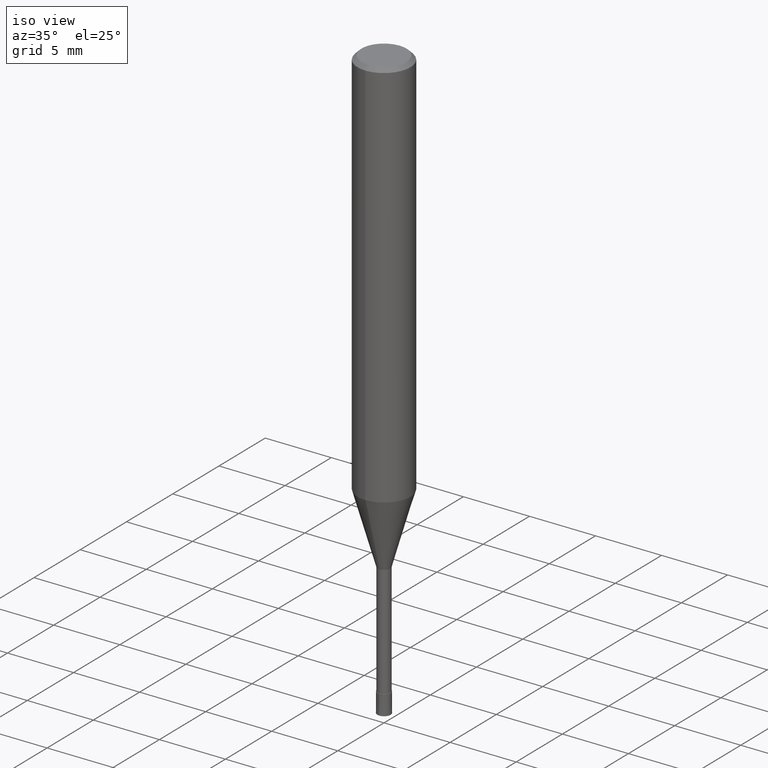
[diagram: clean part render]
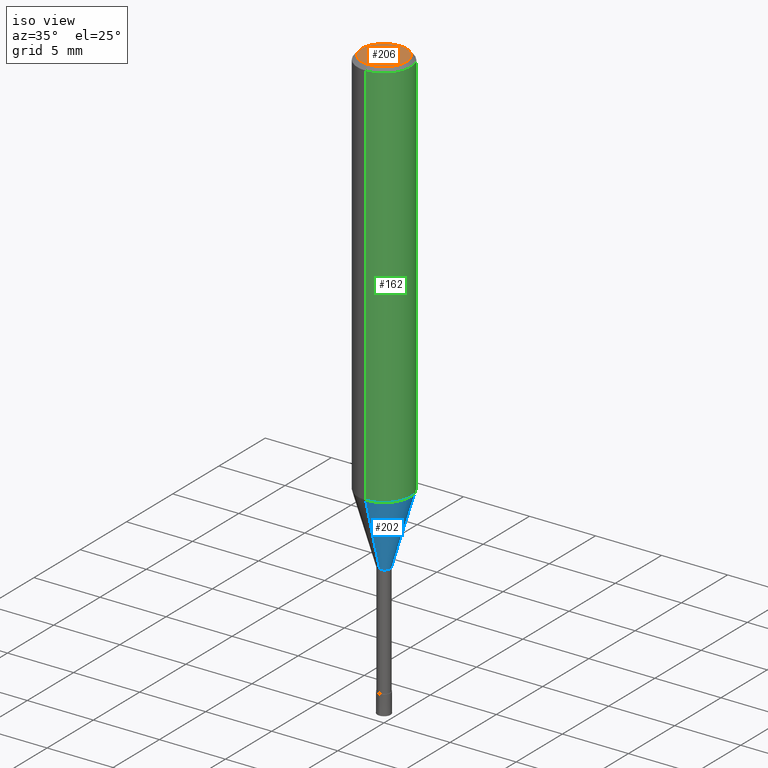
[diagram: same view with three faces highlighted in distinct colors, each labeled with its STEP entity id]
A machine part, iso view with three faces highlighted in distinct colors.
Their STEP definitions:

[orange] entity #206 — the highlighted planar face has unit normal (-0, 0, 1).
#98=EDGE_CURVE('',#100,#198,#235,.T.);
#100=VERTEX_POINT('',#237);
#136=EDGE_CURVE('',#198,#100,#280,.T.);
#198=VERTEX_POINT('',#348);
#206=ADVANCED_FACE('',(#358),#359,.T.);
#235=CIRCLE('',#381,1.7);
#237=CARTESIAN_POINT('',(2.08183080149804E-016,-1.7,0.0));
#280=CIRCLE('',#435,1.7);
#348=CARTESIAN_POINT('',(0.0,1.7,0.0));
#358=FACE_OUTER_BOUND('',#536,.T.);
#359=PLANE('',#537);
#381=AXIS2_PLACEMENT_3D('',#542,#543,#544);
#435=AXIS2_PLACEMENT_3D('',#605,#606,#607);
#536=EDGE_LOOP('',(#706,#707));
#537=AXIS2_PLACEMENT_3D('',#708,#709,#710);
#542=CARTESIAN_POINT('',(0.0,0.0,0.0));
#543=DIRECTION('',(0.0,0.0,-1.0));
#544=DIRECTION('',(0.0,1.0,0.0));
#605=CARTESIAN_POINT('',(0.0,0.0,0.0));
#606=DIRECTION('',(0.0,0.0,-1.0));
#607=DIRECTION('',(0.0,1.0,0.0));
#706=ORIENTED_EDGE('',*,*,#136,.F.);
#707=ORIENTED_EDGE('',*,*,#98,.F.);
#708=CARTESIAN_POINT('',(0.0,0.85,0.0));
#709=DIRECTION('',(-0.0,0.0,1.0));
#710=DIRECTION('',(0.0,-1.0,0.0));

[blue] entity #202 — the highlighted conical surface has half-angle 16.001 deg.
#94=VERTEX_POINT('',#231);
#96=VERTEX_POINT('',#233);
#108=VERTEX_POINT('',#245);
#114=VERTEX_POINT('',#254);
#152=EDGE_CURVE('',#96,#114,#297,.T.);
#156=EDGE_CURVE('',#108,#94,#301,.T.);
#164=EDGE_CURVE('',#94,#114,#310,.T.);
#174=EDGE_CURVE('',#96,#108,#322,.T.);
#202=ADVANCED_FACE('',(#352),#353,.T.);
#231=CARTESIAN_POINT('',(5.81626787747938E-017,-0.47495,-35.0));
#233=CARTESIAN_POINT('',(0.0,1.99995,-29.682));
#245=CARTESIAN_POINT('',(0.0,0.47495,-35.0));
#254=CARTESIAN_POINT('',(2.44915147732706E-016,-1.99995,-29.682));
#297=CIRCLE('',#456,1.99995);
#301=CIRCLE('',#462,0.47495);
#310=LINE('',#472,#473);
#322=LINE('',#488,#489);
#352=FACE_OUTER_BOUND('',#530,.T.);
#353=CONICAL_SURFACE('',#531,1.23745,0.279267977304115);
#456=AXIS2_PLACEMENT_3D('',#619,#620,#621);
#462=AXIS2_PLACEMENT_3D('',#625,#626,#627);
#472=CARTESIAN_POINT('',(1.5153891325375E-016,-1.23745,-32.341));
#473=VECTOR('',#636,1.0);
#488=CARTESIAN_POINT('',(-1.5153891325375E-016,1.23745,-32.341));
#489=VECTOR('',#659,1.0);
#530=EDGE_LOOP('',(#692,#693,#694,#695));
#531=AXIS2_PLACEMENT_3D('',#696,#697,#698);
#619=CARTESIAN_POINT('',(0.0,0.0,-29.682));
#620=DIRECTION('',(0.0,0.0,-1.0));
#621=DIRECTION('',(0.0,1.0,0.0));
#625=CARTESIAN_POINT('',(0.0,0.0,-35.0));
#626=DIRECTION('',(0.0,0.0,-1.0));
#627=DIRECTION('',(0.0,1.0,0.0));
#636=DIRECTION('',(3.37565264353533E-017,-0.275652060190515,0.961257479405349));
#659=DIRECTION('',(3.37565264353533E-017,-0.275652060190515,-0.961257479405349));
#692=ORIENTED_EDGE('',*,*,#174,.F.);
#693=ORIENTED_EDGE('',*,*,#152,.T.);
#694=ORIENTED_EDGE('',*,*,#164,.F.);
#695=ORIENTED_EDGE('',*,*,#156,.F.);
#696=CARTESIAN_POINT('',(0.0,0.0,-32.341));
#697=DIRECTION('',(-0.0,-0.0,1.0));
#698=DIRECTION('',(0.0,1.0,0.0));

[green] entity #162 — the highlighted cylindrical surface (edge-blend (fillet) strip) has radius 2 mm, axis along (-0, -0, 1).
#106=VERTEX_POINT('',#243);
#116=VERTEX_POINT('',#256);
#142=VERTEX_POINT('',#286);
#148=EDGE_CURVE('',#106,#194,#293,.T.);
#162=ADVANCED_FACE('',(#307),#308,.T.);
#178=EDGE_CURVE('',#142,#116,#326,.T.);
#188=EDGE_CURVE('',#106,#116,#337,.T.);
#194=VERTEX_POINT('',#344);
#196=EDGE_CURVE('',#194,#142,#346,.T.);
#243=CARTESIAN_POINT('',(0.0,2.0,-0.300000000000001));
#256=CARTESIAN_POINT('',(2.44921270764475E-016,-2.0,-0.300000000000001));
#286=CARTESIAN_POINT('',(2.44921270764475E-016,-2.0,-29.682));
#293=LINE('',#450,#451);
#307=FACE_OUTER_BOUND('',#468,.T.);
#308=CYLINDRICAL_SURFACE('',#469,2.0);
#326=LINE('',#496,#497);
#337=CIRCLE('',#514,2.0);
#344=CARTESIAN_POINT('',(0.0,2.0,-29.682));
#346=CIRCLE('',#525,2.0);
#450=CARTESIAN_POINT('',(-2.44921270764475E-016,2.0,-14.991));
#451=VECTOR('',#618,1.0);
#468=EDGE_LOOP('',(#629,#630,#631,#632));
#469=AXIS2_PLACEMENT_3D('',#633,#634,#635);
#496=CARTESIAN_POINT('',(2.44921270764475E-016,-2.0,-14.991));
#497=VECTOR('',#661,1.0);
#514=AXIS2_PLACEMENT_3D('',#673,#674,#675);
#525=AXIS2_PLACEMENT_3D('',#687,#688,#689);
#618=DIRECTION('',(0.0,0.0,-1.0));
#629=ORIENTED_EDGE('',*,*,#148,.F.);
#630=ORIENTED_EDGE('',*,*,#188,.T.);
#631=ORIENTED_EDGE('',*,*,#178,.F.);
#632=ORIENTED_EDGE('',*,*,#196,.F.);
#633=CARTESIAN_POINT('',(0.0,0.0,-14.991));
#634=DIRECTION('',(-0.0,-0.0,1.0));
#635=DIRECTION('',(0.0,1.0,0.0));
#661=DIRECTION('',(-0.0,-0.0,1.0));
#673=CARTESIAN_POINT('',(0.0,0.0,-0.300000000000001));
#674=DIRECTION('',(0.0,0.0,-1.0));
#675=DIRECTION('',(0.0,1.0,0.0));
#687=CARTESIAN_POINT('',(0.0,0.0,-29.682));
#688=DIRECTION('',(0.0,0.0,-1.0));
#689=DIRECTION('',(0.0,1.0,0.0));